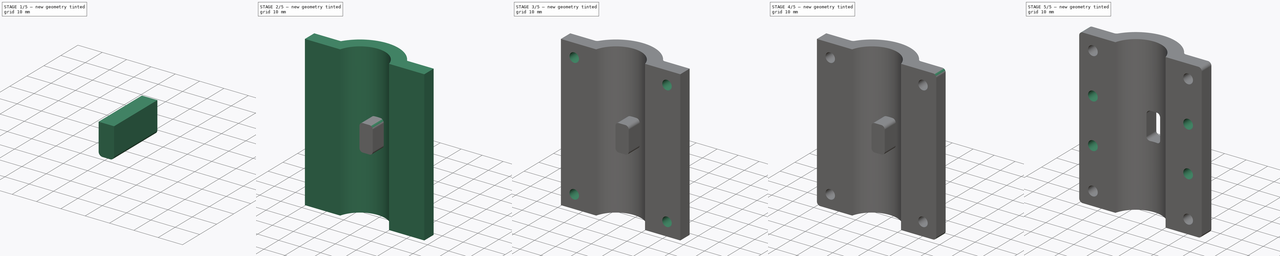
[diagram: build sequence overview — one tinted view per stage of 5, left to right]
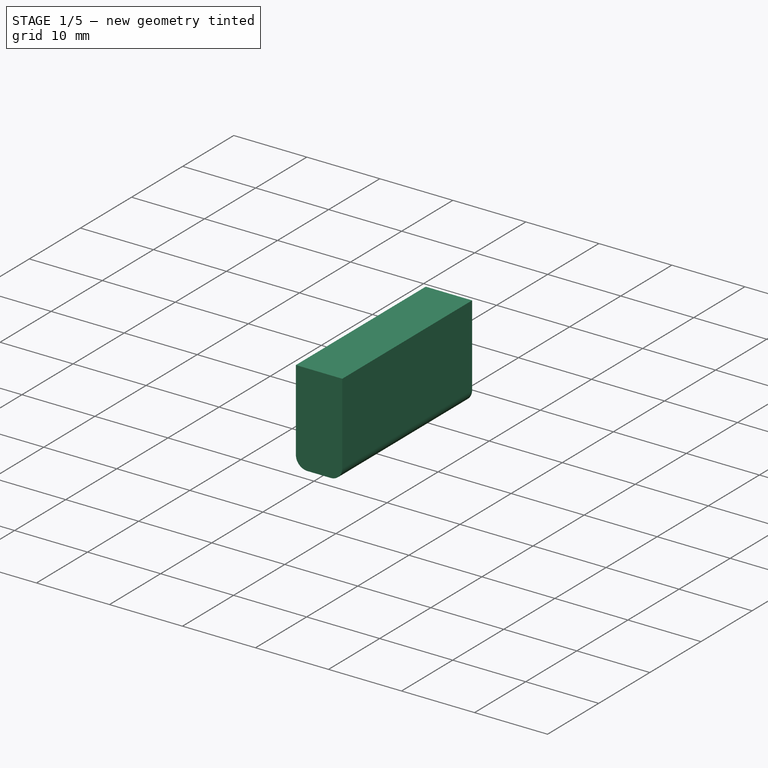
[diagram: stage 1 of 5 — iso view after this stage's code; geometry added in this stage tinted green]
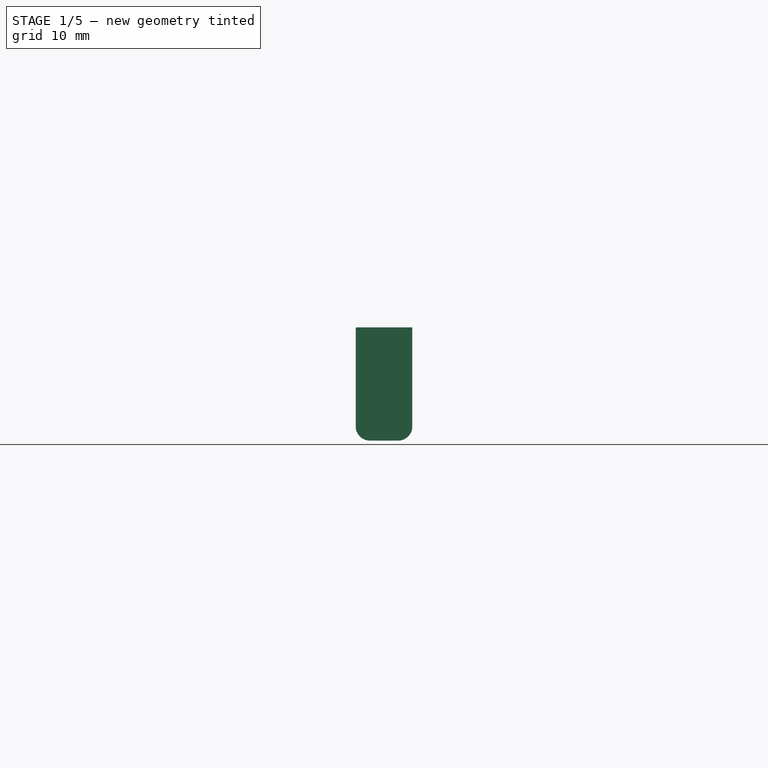
[diagram: stage 1 of 5 — front view after this stage's code; geometry added in this stage tinted green]
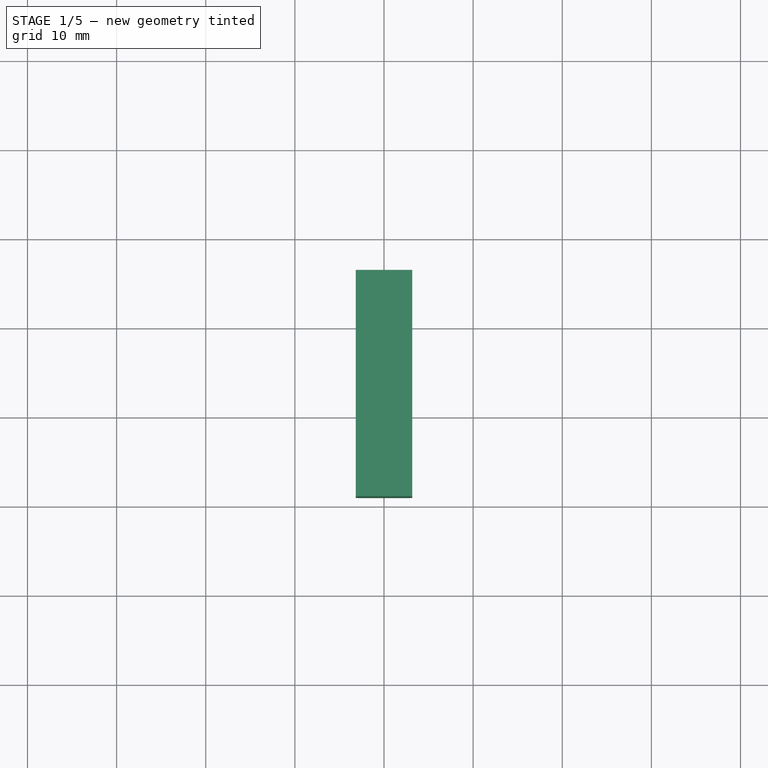
[diagram: stage 1 of 5 — top view after this stage's code; geometry added in this stage tinted green]
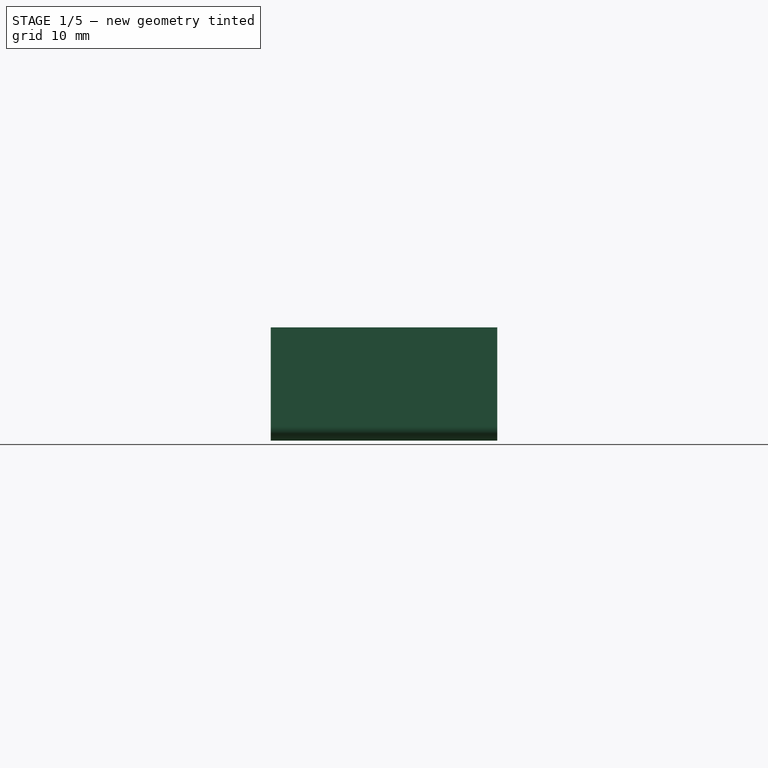
[diagram: stage 1 of 5 — right view after this stage's code; geometry added in this stage tinted green]
FCSTD DOCUMENT  (FreeCAD 0.15R4671 (Git))
Label: motor_mount_c
License: All rights reserved
LicenseURL: http://en.wikipedia.org/wiki/All_rights_reserved
objects: PartDesign::Fillet×10, Sketcher::SketchObject×4, PartDesign::Pad×2, PartDesign::Pocket×2, Part::Cut×1
note: 23 computed .brp shape members not serialized (recipe doc carries the construction recipe); baked Part::Feature solids carry a one-line shape summary decoded from their .brp

FEATURE [Sketcher::SketchObject] Sketch003
  Placement = pos=(0,1,0) rot=(1,0,0;1.5708rad)
  sketch-geometry (4):
    g0: LineSegment StartX=-3.175 StartY=42.164 StartZ=0 EndX=3.175 EndY=42.164 EndZ=0
    g1: LineSegment StartX=3.175 StartY=42.164 StartZ=0 EndX=3.175 EndY=29.464 EndZ=0
    g2: LineSegment StartX=3.175 StartY=29.464 StartZ=0 EndX=-3.175 EndY=29.464 EndZ=0
    g3: LineSegment StartX=-3.175 StartY=29.464 StartZ=0 EndX=-3.175 EndY=42.164 EndZ=0
  constraints (12):
    c: Coincident(g0,g1)
    c: Coincident(g1,g2)
    c: Coincident(g2,g3)
    c: Coincident(g3,g0)
    c: Horizontal(g0)
    c: Horizontal(g2)
    c: Vertical(g1)
    c: Vertical(g3)
    c: DistanceX(g-1,g1) = 3.175
    c: DistanceX(g-1,g2) = -3.175
    c: DistanceY(g2,g0) = 12.7
    c: DistanceY(g-1,g2) = 29.464
FEATURE [PartDesign::Pad] Pad001
  Length = 25.4
  Length2 = 100
  Placement = pos=(0,1,0) rot=(1,0,0;1.5708rad)
  Reversed = true
  Sketch = -> Sketch003
  Type = 0
FEATURE [PartDesign::Fillet] Fillet006
  Base = -> Pad001 [Edge5]
  Placement = pos=(0,1,0) rot=(1,0,0;1.5708rad)
  Radius = 1.5875
FEATURE [PartDesign::Fillet] Fillet007
  Base = -> Fillet006 [Edge15]
  Placement = pos=(0,1,0) rot=(1,0,0;1.5708rad)
  Radius = 1.5875
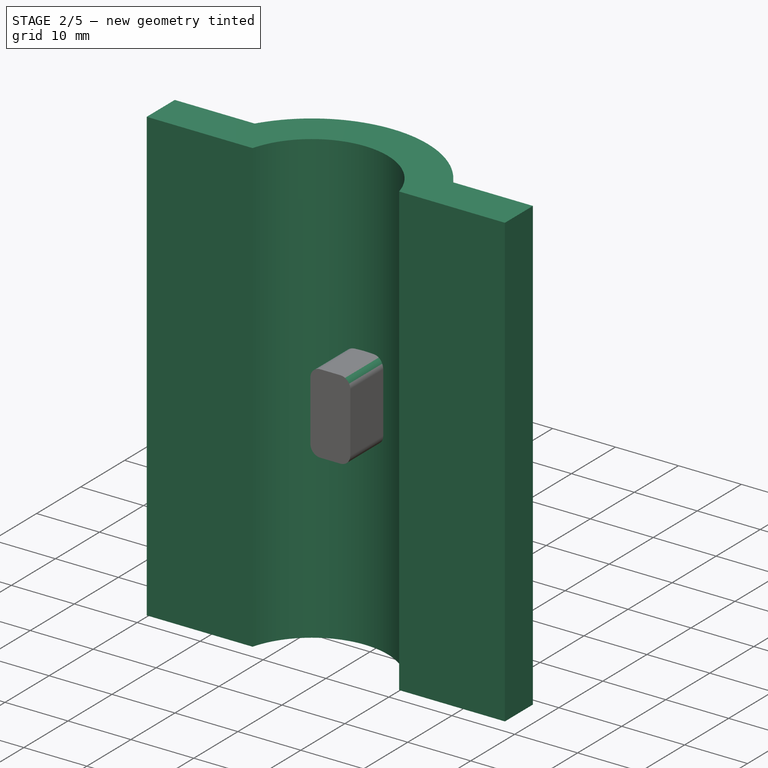
[diagram: stage 2 of 5 — iso view after this stage's code; geometry added in this stage tinted green]
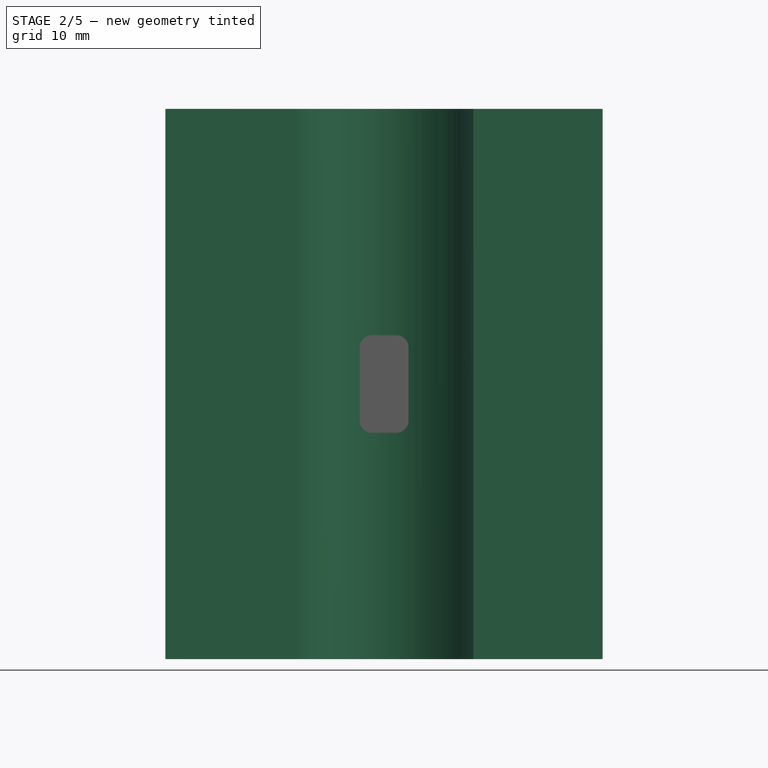
[diagram: stage 2 of 5 — front view after this stage's code; geometry added in this stage tinted green]
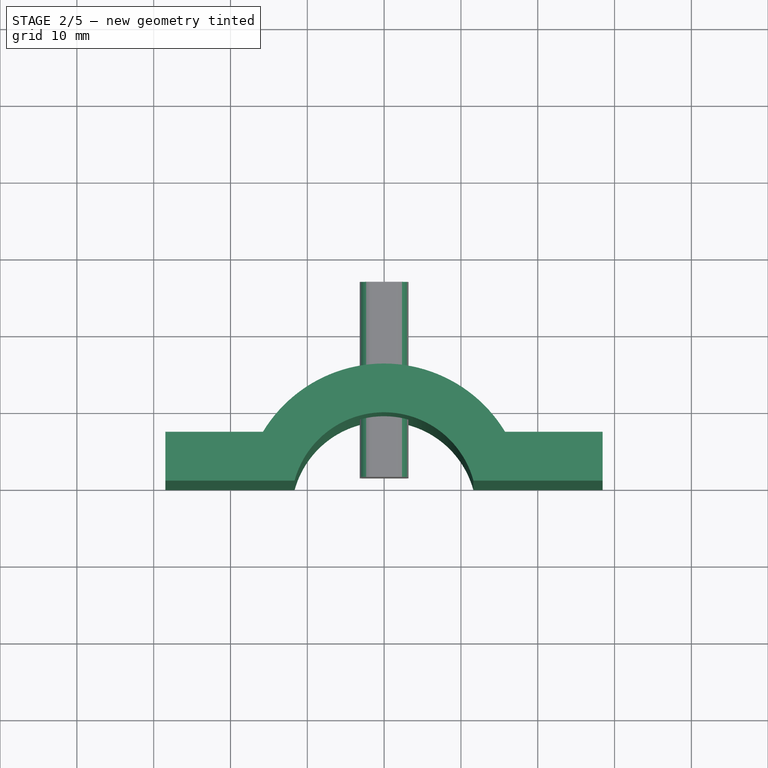
[diagram: stage 2 of 5 — top view after this stage's code; geometry added in this stage tinted green]
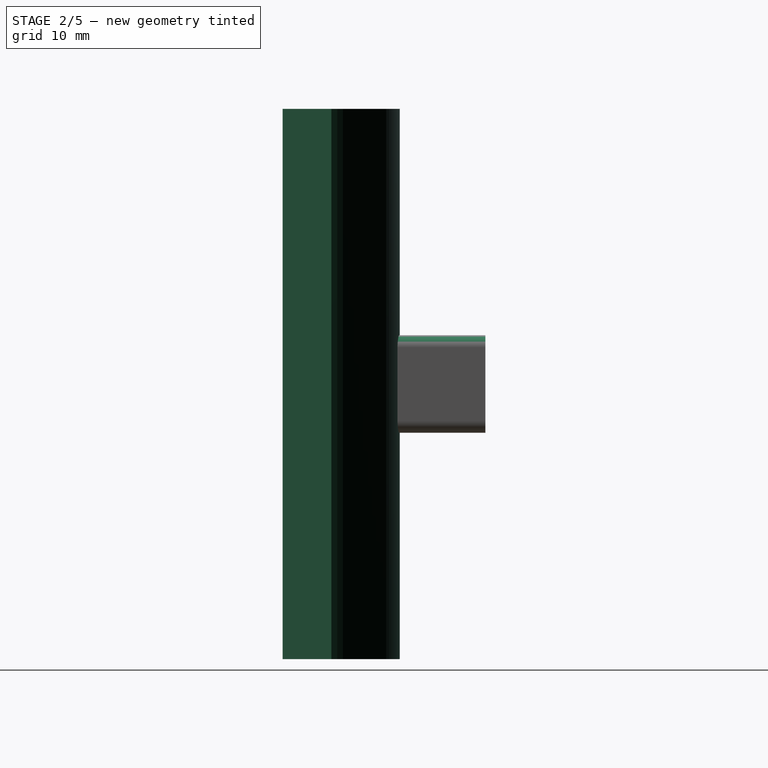
[diagram: stage 2 of 5 — right view after this stage's code; geometry added in this stage tinted green]
FEATURE [Sketcher::SketchObject] Sketch
  sketch-geometry (8):
    g0: ArcOfCircle CenterX=-0.014935 CenterY=-3.17507 CenterZ=0 NormalX=0 NormalY=0 NormalZ=1 Radius=12.0675 StartAngle=0.266242 EndAngle=2.87535
    g1: ArcOfCircle CenterX=-0.014935 CenterY=-3.17418 CenterZ=0 NormalX=0 NormalY=0 NormalZ=1 Radius=18.4175 StartAngle=0.543489 EndAngle=2.5981
    g2: LineSegment StartX=11.6274 StartY=0 StartZ=0 EndX=28.4488 EndY=0 EndZ=0
    g3: LineSegment StartX=-11.6573 StartY=0 StartZ=0 EndX=-28.4787 EndY=0 EndZ=0
    g4: LineSegment StartX=28.4488 StartY=6.35 StartZ=0 EndX=15.7488 EndY=6.35 EndZ=0
    g5: LineSegment StartX=-15.7787 StartY=6.35 StartZ=0 EndX=-28.4787 EndY=6.35 EndZ=0
    g6: LineSegment StartX=28.4488 StartY=6.35 StartZ=0 EndX=28.4488 EndY=0 EndZ=0
    g7: LineSegment StartX=-28.4787 StartY=6.35 StartZ=0 EndX=-28.4787 EndY=0 EndZ=0
  constraints (26):
    c: Radius(g0) = 12.0675
    c: Radius(g1) = 18.4175
    c: Horizontal(g2)
    c: Horizontal(g3)
    c: DistanceY(g5,g3) = -6.35
    c: Horizontal(g4)
    c: Tangent(g4,g5)
    c: Coincident(g1,g4)
    c: Coincident(g1,g5)
    c: Coincident(g2,g0)
    c: Coincident(g0,g3)
    c: DistanceX(g1,g1) = 31.5275
    c: DistanceX(g0,g0) = 23.2847
    c: DistanceX(g-1,g1) = 15.7488
    c: DistanceX(g1,g4) = 12.7
    c: Equal(g5,g4)
    c: Equal(g3,g2)
    c: Coincident(g6,g4)
    c: Vertical(g6)
    c: Coincident(g2,g6)
    c: Coincident(g7,g5)
    c: Coincident(g7,g3)
    c: Vertical(g7)
    c: DistanceY(g4,g2) = -6.35
    c: Equal(g7,g6)
    c: DistanceY(g-1,g0) = 0
FEATURE [PartDesign::Pad] Pad
  Length = 71.628
  Length2 = 100
  Sketch = -> Sketch
  Type = 0
FEATURE [PartDesign::Fillet] Fillet008
  Base = -> Fillet007 [Edge14]
  Placement = pos=(0,1,0) rot=(1,0,0;1.5708rad)
  Radius = 1.5875
FEATURE [PartDesign::Fillet] Fillet009
  Base = -> Fillet008 [Edge15]
  Placement = pos=(0,1,0) rot=(1,0,0;1.5708rad)
  Radius = 1.5875
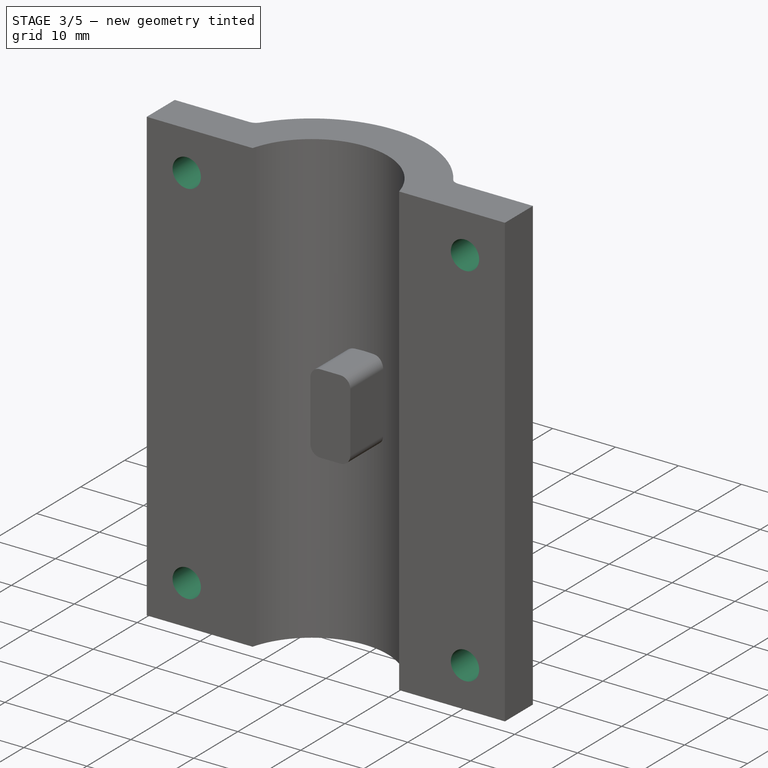
[diagram: stage 3 of 5 — iso view after this stage's code; geometry added in this stage tinted green]
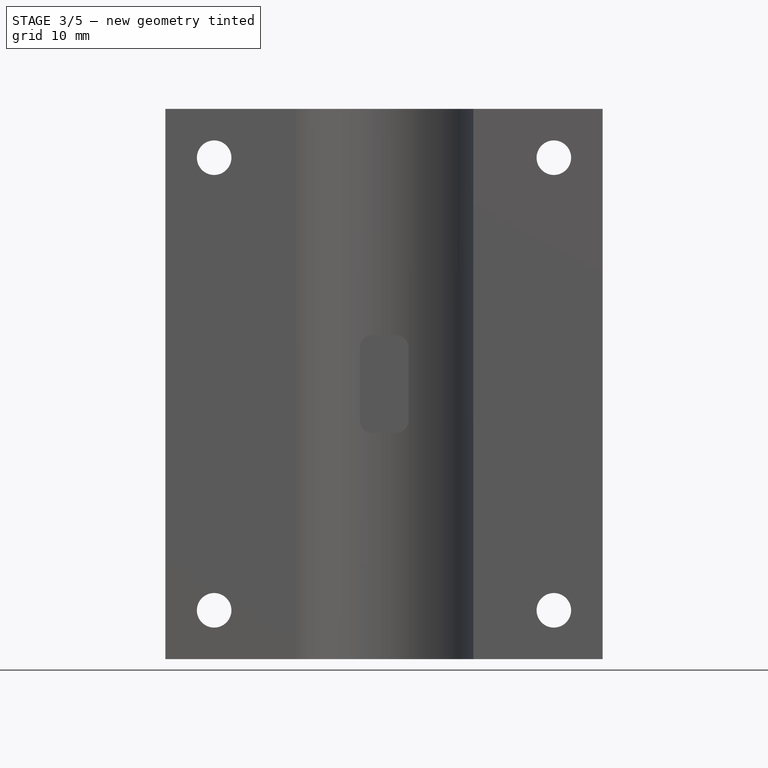
[diagram: stage 3 of 5 — front view after this stage's code; geometry added in this stage tinted green]
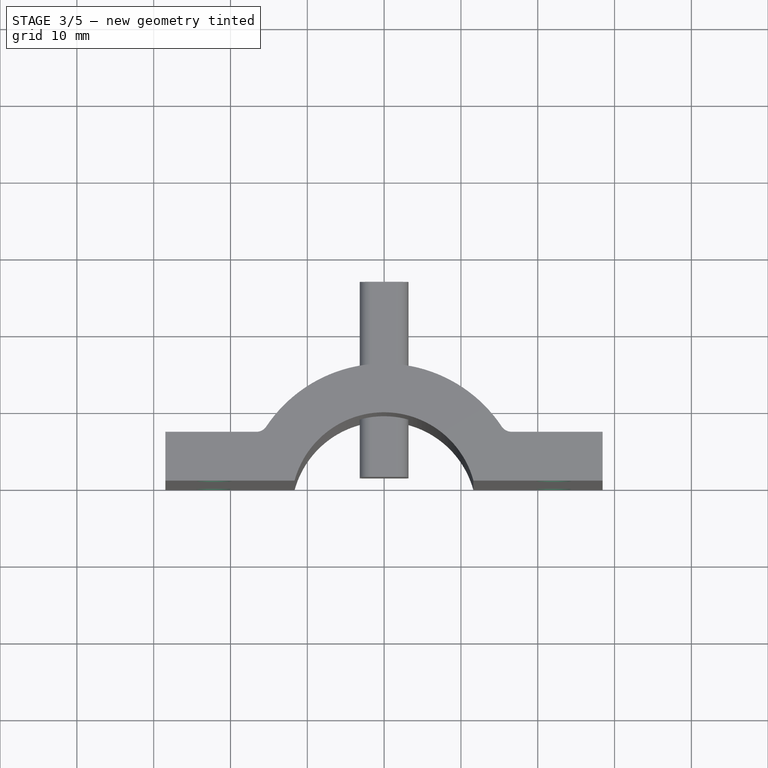
[diagram: stage 3 of 5 — top view after this stage's code; geometry added in this stage tinted green]
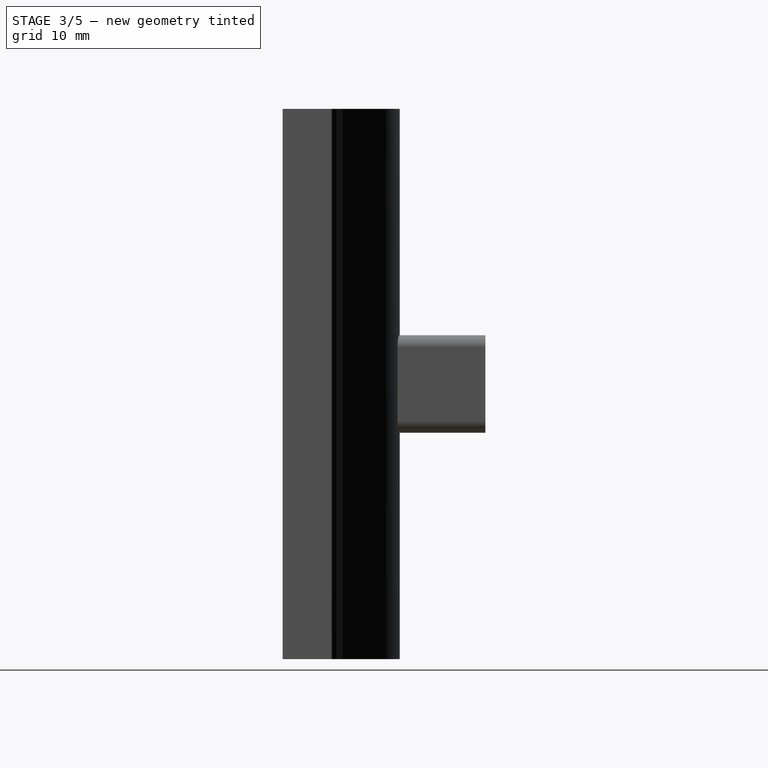
[diagram: stage 3 of 5 — right view after this stage's code; geometry added in this stage tinted green]
FEATURE [Sketcher::SketchObject] Sketch001
  ExternalGeometry = -> [Pad]
  Placement = pos=(0,6.35,0) rot=(0,0.707107,0.707107;3.14159rad)
  Support = -> Pad [Face8]
  sketch-geometry (4):
    g0: Circle CenterX=-22.0988 CenterY=65.278 CenterZ=0 NormalX=0 NormalY=0 NormalZ=1 Radius=2.24815
    g1: Circle CenterX=-22.0988 CenterY=6.35 CenterZ=0 NormalX=0 NormalY=0 NormalZ=1 Radius=2.24815
    g2: Circle CenterX=22.1287 CenterY=65.278 CenterZ=0 NormalX=0 NormalY=0 NormalZ=1 Radius=2.24815
    g3: Circle CenterX=22.1287 CenterY=6.35 CenterZ=0 NormalX=0 NormalY=0 NormalZ=1 Radius=2.24815
  constraints (12):
    c: Radius(g2) = 2.24815
    c: Equal(g2,g3)
    c: Equal(g2,g1)
    c: Equal(g2,g0)
    c: DistanceX(g0,g-4) = -6.35
    c: DistanceX(g1,g-4) = -6.35
    c: DistanceX(g2,g-3) = 6.35
    c: DistanceX(g3,g-3) = 6.35
    c: DistanceY(g0,g-4) = 6.35
    c: DistanceY(g1,g-4) = -6.35
    c: DistanceY(g2,g-3) = 6.35
    c: DistanceY(g3,g-3) = -6.35
FEATURE [PartDesign::Pocket] Pocket
  Length = 4.99999
  Sketch = -> Sketch001
  Type = 1
FEATURE [PartDesign::Fillet] Fillet
  Base = -> Pocket [Edge7]
  Radius = 1.5875
FEATURE [PartDesign::Fillet] Fillet001
  Base = -> Fillet [Edge29]
  Radius = 1.5875
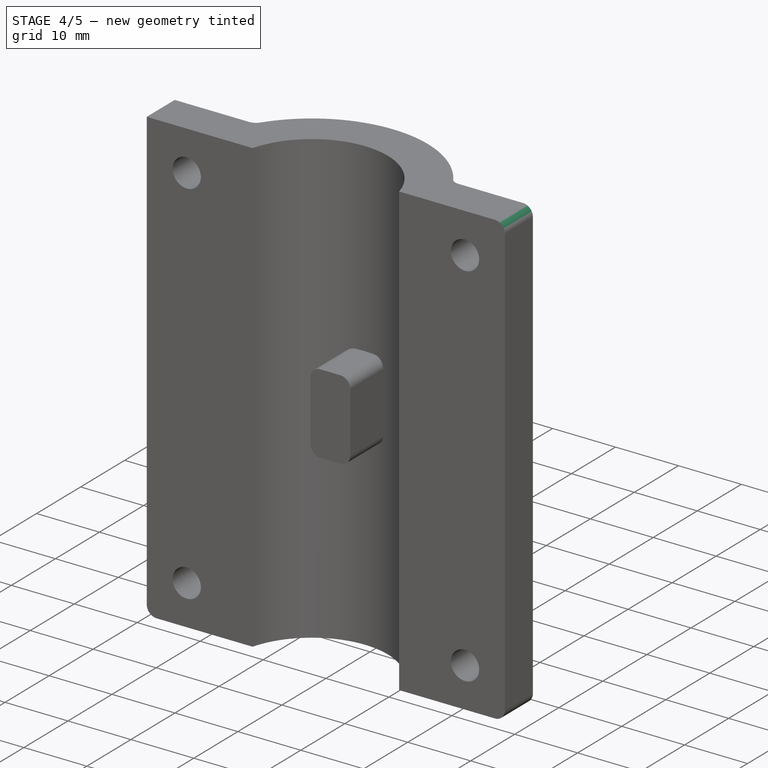
[diagram: stage 4 of 5 — iso view after this stage's code; geometry added in this stage tinted green]
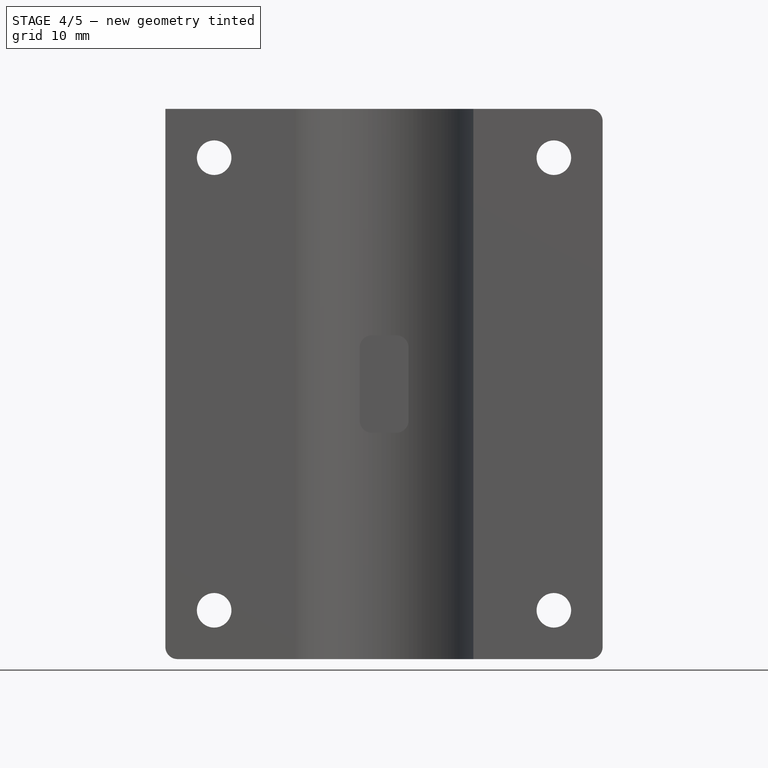
[diagram: stage 4 of 5 — front view after this stage's code; geometry added in this stage tinted green]
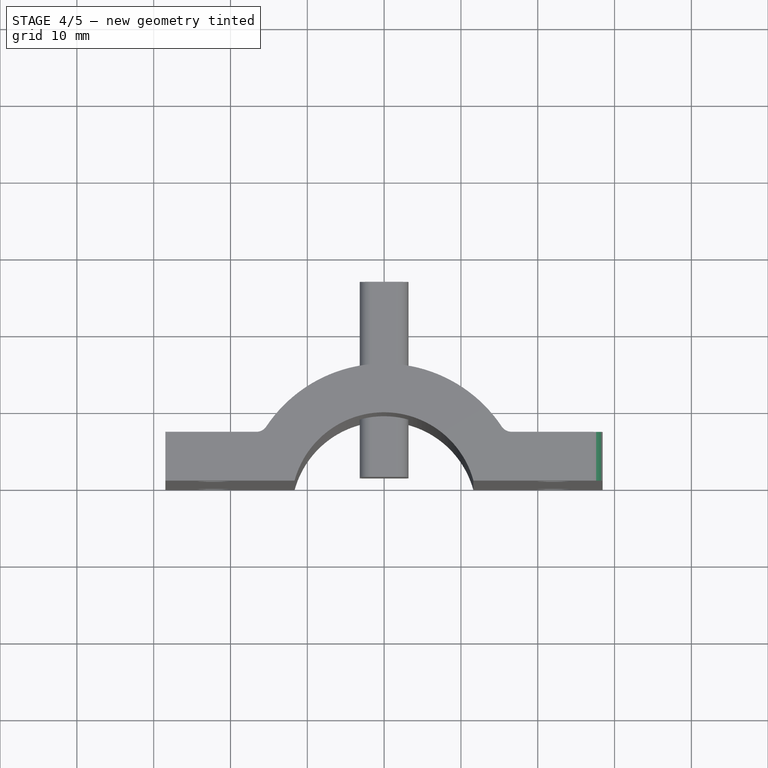
[diagram: stage 4 of 5 — top view after this stage's code; geometry added in this stage tinted green]
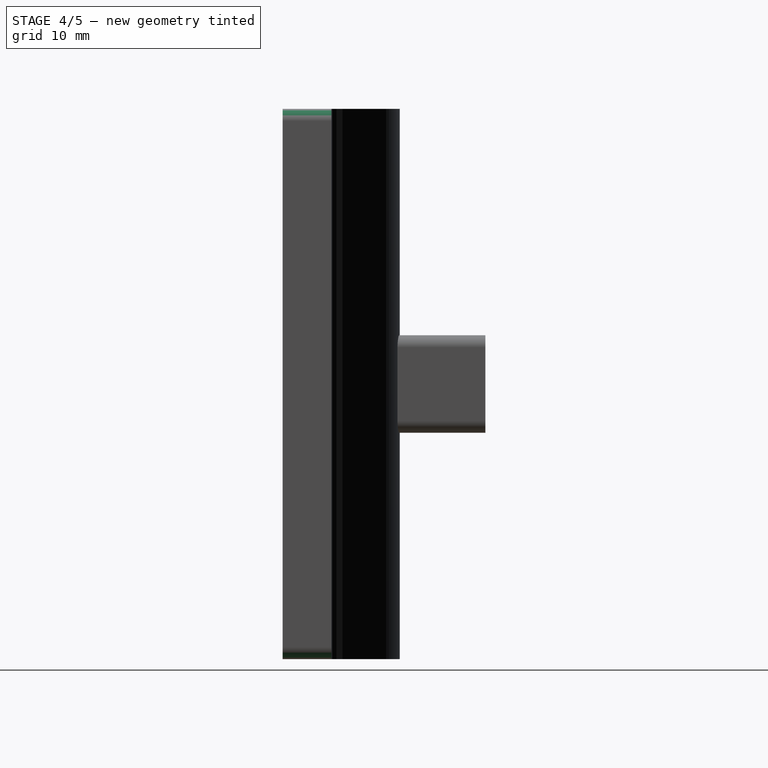
[diagram: stage 4 of 5 — right view after this stage's code; geometry added in this stage tinted green]
FEATURE [PartDesign::Fillet] Fillet002
  Base = -> Fillet001 [Edge7]
  Radius = 1.5875
FEATURE [PartDesign::Fillet] Fillet003
  Base = -> Fillet002 [Edge10]
  Radius = 1.5875
FEATURE [PartDesign::Fillet] Fillet004
  Base = -> Fillet003 [Edge44]
  Radius = 1.5875
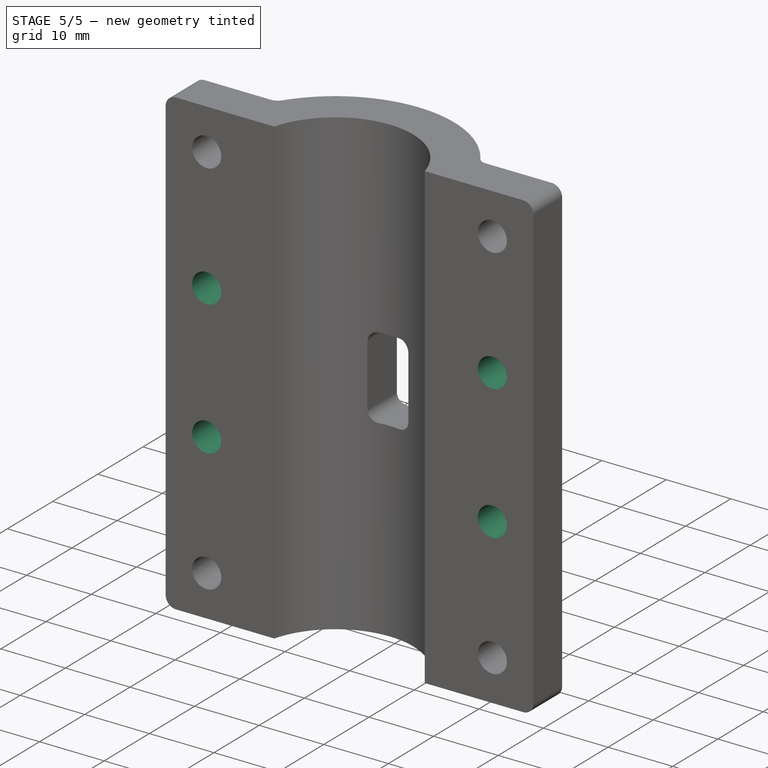
[diagram: stage 5 of 5 — iso view after this stage's code; geometry added in this stage tinted green]
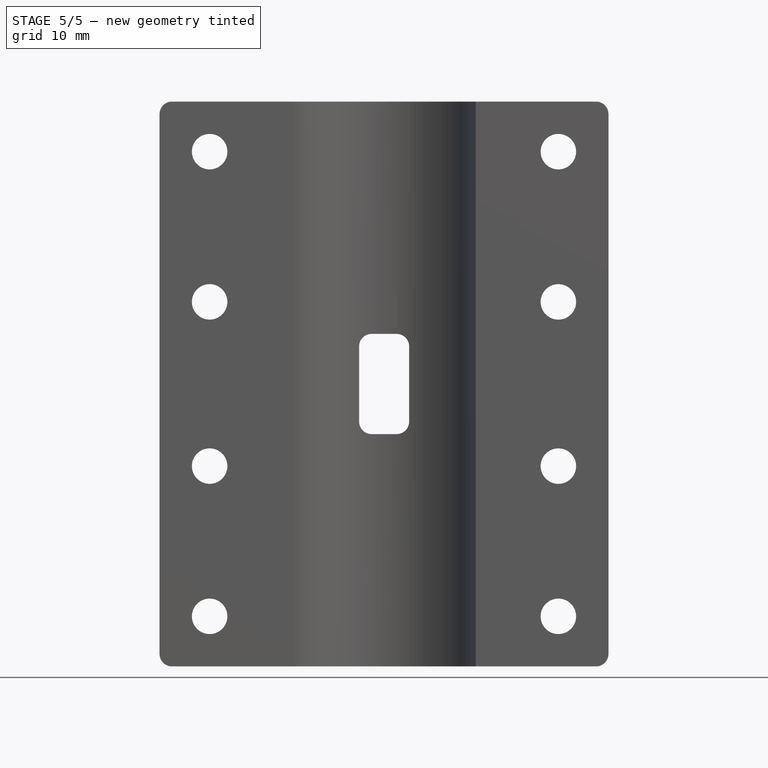
[diagram: stage 5 of 5 — front view after this stage's code; geometry added in this stage tinted green]
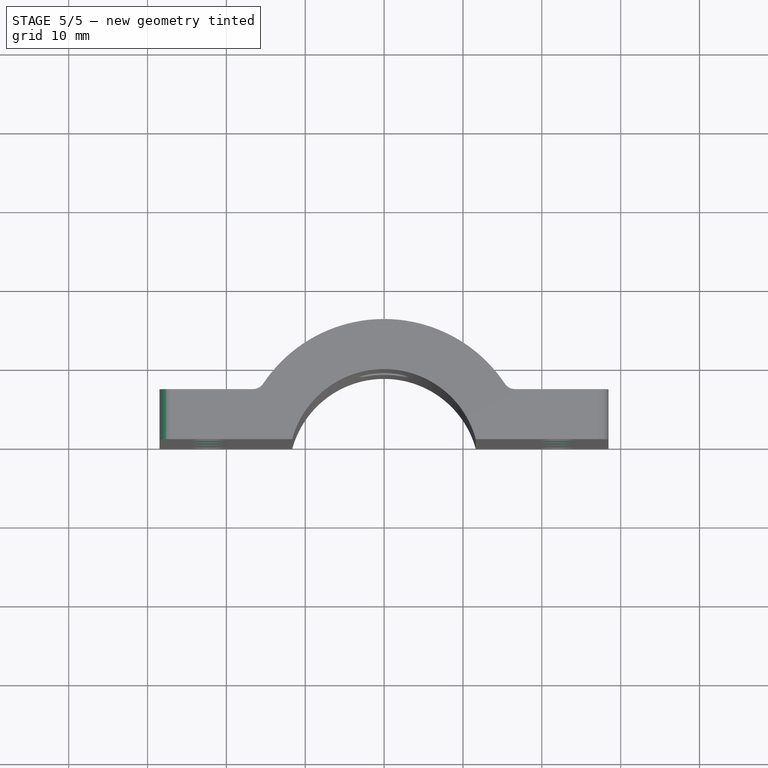
[diagram: stage 5 of 5 — top view after this stage's code; geometry added in this stage tinted green]
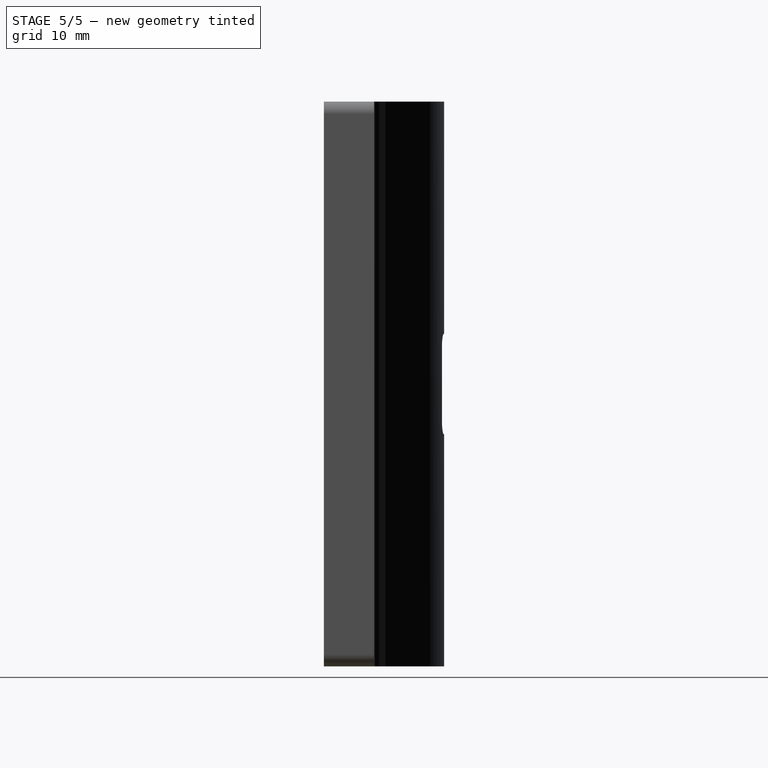
[diagram: stage 5 of 5 — right view after this stage's code; geometry added in this stage tinted green]
FEATURE [PartDesign::Fillet] Fillet005
  Base = -> Fillet004 [Edge23]
  Radius = 1.5875
FEATURE [Sketcher::SketchObject] Sketch002
  ExternalGeometry = -> [Fillet005]
  Placement = pos=(0,6.35,0) rot=(0,0.707107,0.707107;3.14159rad)
  Support = -> Fillet005 [Face10]
  sketch-geometry (4):
    g0: Circle CenterX=-22.0988 CenterY=46.228 CenterZ=0 NormalX=0 NormalY=0 NormalZ=1 Radius=2.24815
    g1: Circle CenterX=-22.0988 CenterY=25.4 CenterZ=0 NormalX=0 NormalY=0 NormalZ=1 Radius=2.24815
    g2: Circle CenterX=22.1287 CenterY=46.228 CenterZ=0 NormalX=0 NormalY=0 NormalZ=1 Radius=2.24815
    g3: Circle CenterX=22.1287 CenterY=25.4 CenterZ=0 NormalX=0 NormalY=0 NormalZ=1 Radius=2.24815
  constraints (12):
    c: Equal(g2,g3)
    c: Equal(g3,g0)
    c: Equal(g0,g1)
    c: Equal(g1,g-3)
    c: DistanceY(g0,g-7) = 25.4
    c: DistanceY(g1,g-9) = -25.4
    c: DistanceY(g2,g-5) = 25.4
    c: DistanceY(g3,g-6) = -25.4
    c: DistanceX(g2,g-4) = 6.35
    c: DistanceX(g3,g-4) = 6.35
    c: DistanceX(g0,g-8) = -6.35
    c: DistanceX(g1,g-8) = -6.35
FEATURE [PartDesign::Pocket] Pocket001
  Length = 4.99999
  Sketch = -> Sketch002
  Type = 1
FEATURE [Part::Cut] Cut
  Base = -> Pocket001
  Tool = -> Fillet009
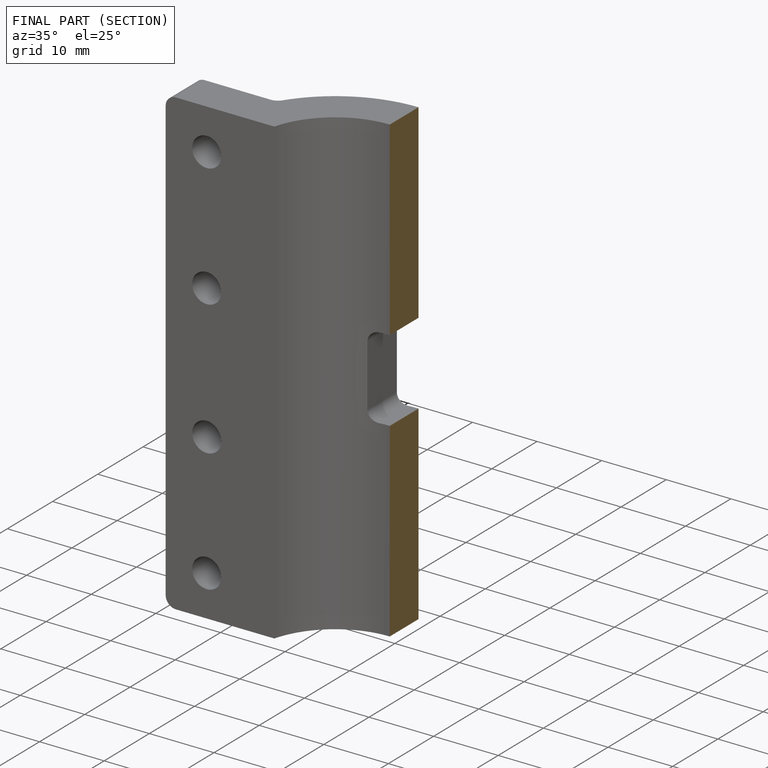
[diagram: finished part — half-section view (interior)]
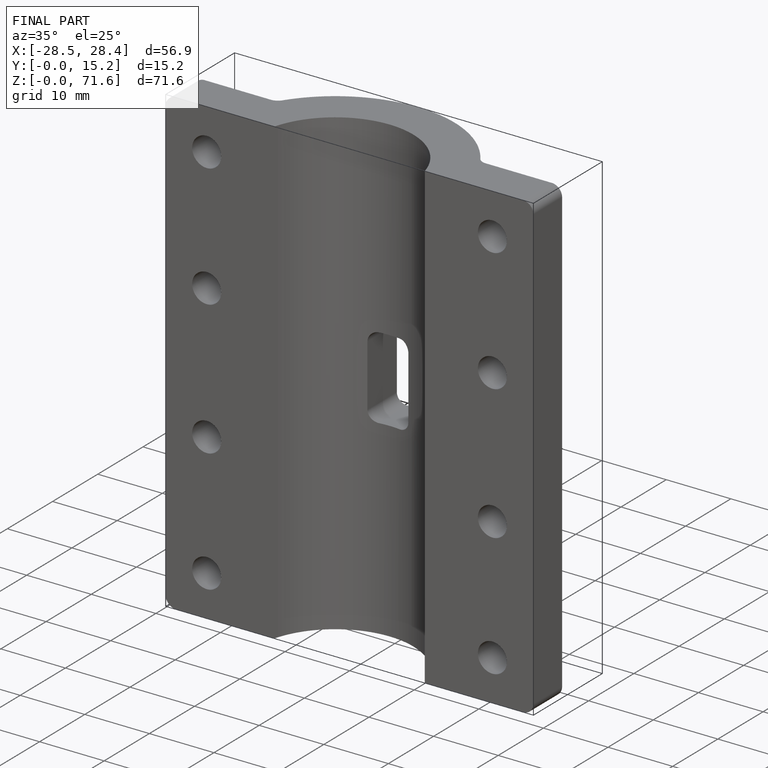
[diagram: finished part — iso view with bounding-box wireframe]
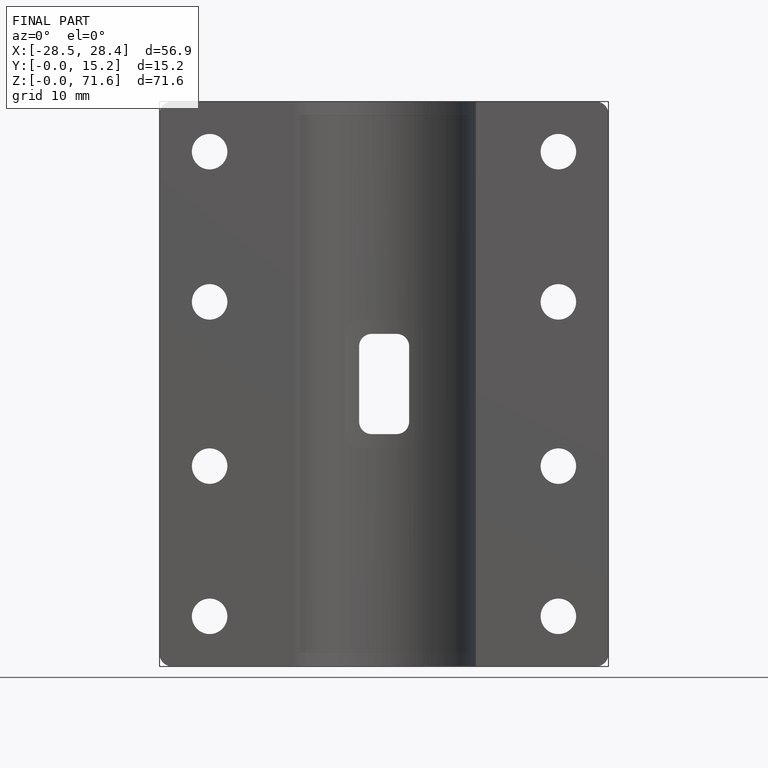
[diagram: finished part — front view with bounding-box wireframe]
